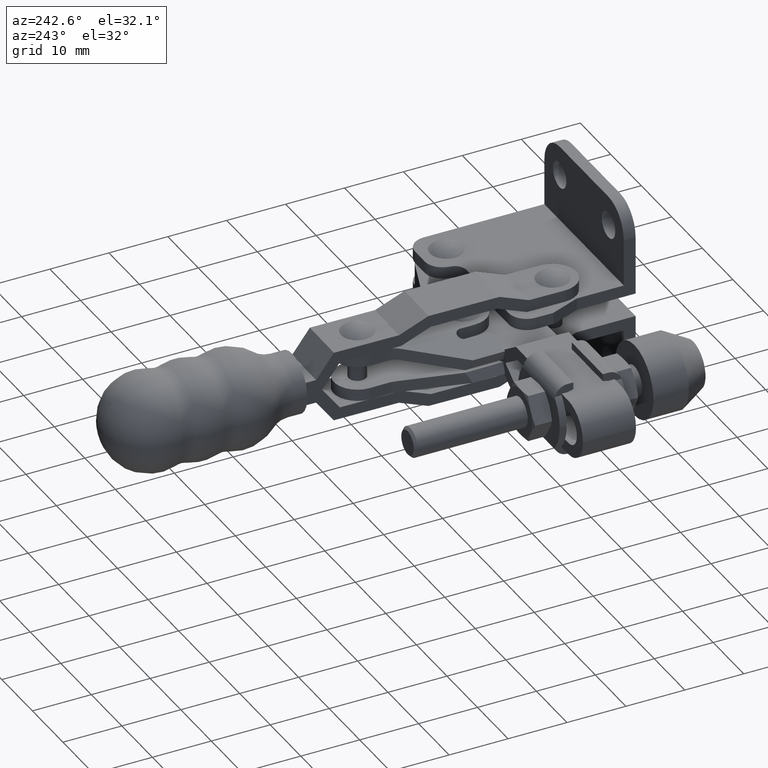
[diagram: clean part render]
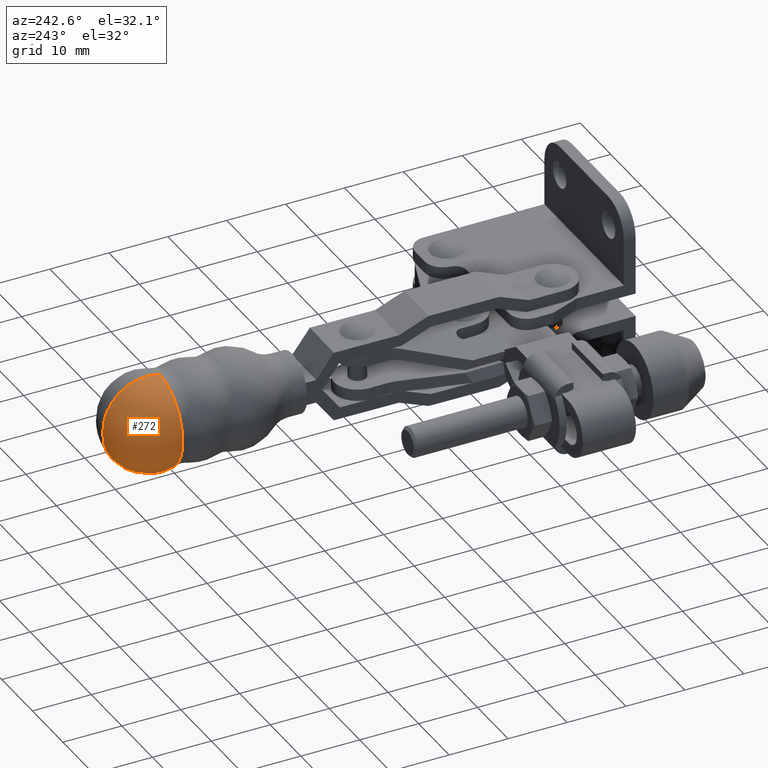
[diagram: same view with one face highlighted and labeled with its STEP entity id]
A machine part, auxiliary view. The second image highlights one B-rep face of the part: STEP entity #272.
In plain terms, the highlighted toroidal blend (fillet) surface has major radius 0.4881 mm and minor (blend) radius 7.5124 mm.
Its self-contained STEP definition (entity closure, byte-faithful):
#52 = CARTESIAN_POINT ( 'NONE',  ( -21.42131972181984200, 78.39747833416279800, -9.699999999999667100 ) ) ;
#272 = ADVANCED_FACE ( 'NONE', ( #4298 ), #1141, .T. ) ;
#384 = ORIENTED_EDGE ( 'NONE', *, *, #8418, .F. ) ;
#615 = CARTESIAN_POINT ( 'NONE',  ( -21.42131972181983800, 78.39747833416279800, -1.999999999999745100 ) ) ;
#1074 = CARTESIAN_POINT ( 'NONE',  ( -21.40298782587556700, 80.50087067304073700, -1.511904761904935500 ) ) ;
#1141 = TOROIDAL_SURFACE ( 'NONE', #8531, 0.4880952380948095400, 7.512400793651052000 ) ;
#1233 = CARTESIAN_POINT ( 'NONE',  ( -21.33765510328777300, 87.99711375596950800, -1.999999999999745100 ) ) ;
#1476 = DIRECTION ( 'NONE',  ( 0.0000000000000000000, 0.0000000000000000000, -1.000000000000000000 ) ) ;
#1940 = DIRECTION ( 'NONE',  ( 0.008715064430423828300, 0.9999620231048645900, 0.0000000000000000000 ) ) ;
#2187 = CIRCLE ( 'NONE', #9507, 7.512400793651053700 ) ;
#2422 = ORIENTED_EDGE ( 'NONE', *, *, #2894, .T. ) ;
#2799 = ORIENTED_EDGE ( 'NONE', *, *, #10799, .F. ) ;
#2894 = EDGE_CURVE ( 'NONE', #9792, #4014, #2187, .T. ) ;
#3348 = VERTEX_POINT ( 'NONE', #10482 ) ;
#3378 = CIRCLE ( 'NONE', #5183, 7.512400793651053700 ) ;
#3801 = DIRECTION ( 'NONE',  ( -0.008715064430423693000, -0.9999620231048644800, 4.848667521160324900E-019 ) ) ;
#4014 = VERTEX_POINT ( 'NONE', #52 ) ;
#4298 = FACE_OUTER_BOUND ( 'NONE', #6371, .T. ) ;
#4350 = AXIS2_PLACEMENT_3D ( 'NONE', #615, #6672, #1476 ) ;
#4771 = DIRECTION ( 'NONE',  ( -4.225644984861497100E-021, -4.848483383822327100E-019, -1.000000000000000000 ) ) ;
#5183 = AXIS2_PLACEMENT_3D ( 'NONE', #1074, #7134, #1940 ) ;
#5187 = CARTESIAN_POINT ( 'NONE',  ( -21.40298782587556700, 80.50087067304073700, -1.999999999999745100 ) ) ;
#5369 = CIRCLE ( 'NONE', #4350, 7.699999999999922000 ) ;
#6371 = EDGE_LOOP ( 'NONE', ( #2799, #2422, #384 ) ) ;
#6672 = DIRECTION ( 'NONE',  ( -0.008715064430423693000, -0.9999620231048644800, 4.848667521160324900E-019 ) ) ;
#6886 = DIRECTION ( 'NONE',  ( -0.9999620231048644800, 0.008715064430423693000, 2.601379937326479400E-018 ) ) ;
#7134 = DIRECTION ( 'NONE',  ( 0.9999620231048644800, -0.008715064430423693000, -1.250660598520618100E-016 ) ) ;
#7365 = CARTESIAN_POINT ( 'NONE',  ( -21.40298782587556700, 80.50087067304073700, -2.488095238094554700 ) ) ;
#8418 = EDGE_CURVE ( 'NONE', #3348, #4014, #5369, .T. ) ;
#8531 = AXIS2_PLACEMENT_3D ( 'NONE', #5187, #3801, #4771 ) ;
#9161 = DIRECTION ( 'NONE',  ( -0.008715064430423828300, -0.9999620231048645900, 0.0000000000000000000 ) ) ;
#9507 = AXIS2_PLACEMENT_3D ( 'NONE', #7365, #6886, #9161 ) ;
#9792 = VERTEX_POINT ( 'NONE', #1233 ) ;
#10482 = CARTESIAN_POINT ( 'NONE',  ( -21.42131972181984200, 78.39747833416279800, 5.700000000000176900 ) ) ;
#10799 = EDGE_CURVE ( 'NONE', #9792, #3348, #3378, .T. ) ;